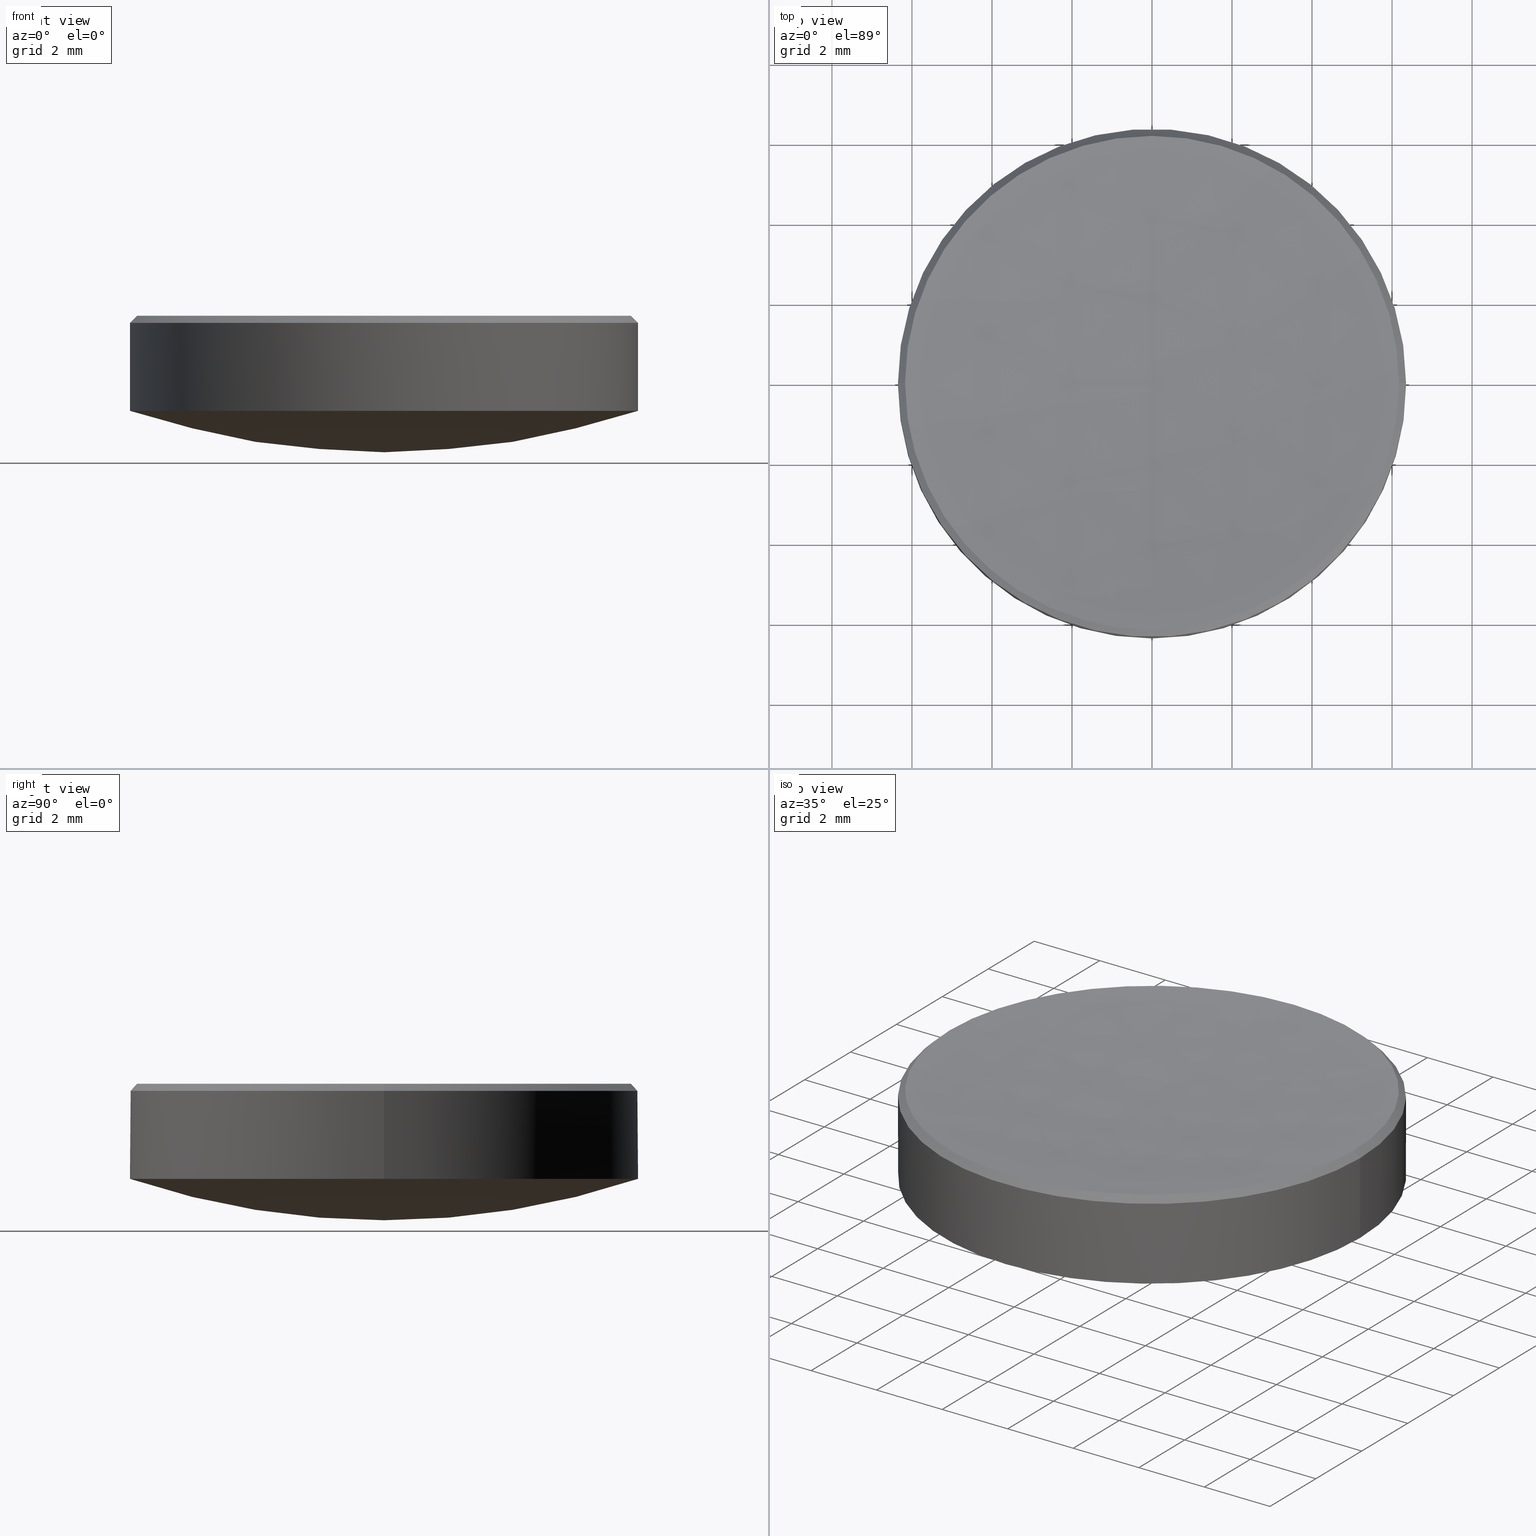
[diagram: canonical four-view strip — front | top / right | iso, engineering-drawing reading convention]
A machine part, canonical four-view strip (front | top / right | iso — engineering-drawing reading convention). The complete STEP part file that produces these views, byte-faithful:
ISO-10303-21;
HEADER;
FILE_DESCRIPTION (( 'STEP AP214' ),
    '1' );
FILE_NAME ('GLM5-012B-080-IR1.STEP',
    '2024-08-09T03:05:58',
    ( 'Windows User' ),
    ( 'P R C' ),
    'SwSTEP 2.0',
    'SolidWorks 2022',
    '' );
FILE_SCHEMA (( 'AUTOMOTIVE_DESIGN' ));
ENDSEC;

DATA;
#1 = CARTESIAN_POINT ( 'NONE',  ( 0.000000000000000000, 0.000000000000000000, 22.96516543560851886 ) ) ;
#2 = DIRECTION ( 'NONE',  ( 1.000000000000000000, 0.000000000000000000, 0.000000000000000000 ) ) ;
#3 = DIRECTION ( 'NONE',  ( 1.000000000000000000, 0.000000000000000000, 0.000000000000000000 ) ) ;
#4 = ORIENTED_EDGE ( 'NONE', *, *, #133, .T. ) ;
#5 = AXIS2_PLACEMENT_3D ( 'NONE', #212, #102, #152 ) ;
#6 = VERTEX_POINT ( 'NONE', #164 ) ;
#7 = VERTEX_POINT ( 'NONE', #159 ) ;
#8 = FACE_OUTER_BOUND ( 'NONE', #168, .T. ) ;
#9 = ORIENTED_EDGE ( 'NONE', *, *, #61, .T. ) ;
#10 = AXIS2_PLACEMENT_3D ( 'NONE', #118, #48, #163 ) ;
#11 = ORIENTED_EDGE ( 'NONE', *, *, #139, .T. ) ;
#12 = EDGE_CURVE ( 'NONE', #257, #267, #184, .T. ) ;
#13 = CARTESIAN_POINT ( 'NONE',  ( -6.349999999999998757, 0.000000000000000000, 4.000000000000000000 ) ) ;
#14 = PRODUCT_DEFINITION_CONTEXT ( 'detailed design', #174, 'design' ) ;
#15 = SURFACE_STYLE_USAGE ( .BOTH. , #238 ) ;
#16 = FACE_OUTER_BOUND ( 'NONE', #74, .T. ) ;
#17 = DIRECTION ( 'NONE',  ( 0.000000000000000000, 0.000000000000000000, -1.000000000000000000 ) ) ;
#18 = STYLED_ITEM ( 'NONE', ( #60 ), #65 ) ;
#19 = CARTESIAN_POINT ( 'NONE',  ( -7.559481502147219479E-16, -6.172785089880957088, 6.377214910119027635 ) ) ;
#20 = CARTESIAN_POINT ( 'NONE',  ( 0.000000000000000000, 0.000000000000000000, 22.96516543560851886 ) ) ;
#21 = EDGE_CURVE ( 'NONE', #57, #190, #204, .T. ) ;
#22 = PRODUCT_CONTEXT ( 'NONE', #84, 'mechanical' ) ;
#23 = DIRECTION ( 'NONE',  ( -0.000000000000000000, -0.000000000000000000, -1.000000000000000000 ) ) ;
#24 = LINE ( 'NONE', #200, #150 ) ;
#25 = EDGE_CURVE ( 'NONE', #210, #26, #138, .T. ) ;
#26 = VERTEX_POINT ( 'NONE', #108 ) ;
#27 = ADVANCED_FACE ( 'NONE', ( #88 ), #59, .T. ) ;
#28 = ORIENTED_EDGE ( 'NONE', *, *, #21, .F. ) ;
#29 = CIRCLE ( 'NONE', #193, 6.172785089880961529 ) ;
#30 = ORIENTED_EDGE ( 'NONE', *, *, #100, .F. ) ;
#31 = DIRECTION ( 'NONE',  ( 1.000000000000000000, 0.000000000000000000, 0.000000000000000000 ) ) ;
#32 = VERTEX_POINT ( 'NONE', #185 ) ;
#33 = DIRECTION ( 'NONE',  ( -1.000000000000000000, 0.000000000000000000, 0.000000000000000000 ) ) ;
#34 = MECHANICAL_DESIGN_GEOMETRIC_PRESENTATION_REPRESENTATION (  '', ( #18 ), #216 ) ;
#35 = EDGE_CURVE ( 'NONE', #57, #210, #280, .T. ) ;
#36 = MECHANICAL_DESIGN_GEOMETRIC_PRESENTATION_REPRESENTATION (  '', ( #153 ), #50 ) ;
#37 = FACE_OUTER_BOUND ( 'NONE', #169, .T. ) ;
#38 = EDGE_CURVE ( 'NONE', #26, #32, #47, .T. ) ;
#39 = DIRECTION ( 'NONE',  ( -1.000000000000000000, 0.000000000000000000, 0.000000000000000000 ) ) ;
#40 = FACE_OUTER_BOUND ( 'NONE', #253, .T. ) ;
#41 = DIRECTION ( 'NONE',  ( -0.000000000000000000, -0.000000000000000000, -1.000000000000000000 ) ) ;
#42 = AXIS2_PLACEMENT_3D ( 'NONE', #146, #31, #121 ) ;
#43 = LINE ( 'NONE', #202, #270 ) ;
#44 = DIRECTION ( 'NONE',  ( 1.000000000000000000, 0.000000000000000000, 0.000000000000000000 ) ) ;
#45 = EDGE_CURVE ( 'NONE', #53, #190, #43, .T. ) ;
#46 = DIRECTION ( 'NONE',  ( 0.000000000000000000, 0.000000000000000000, -1.000000000000000000 ) ) ;
#47 = CIRCLE ( 'NONE', #131, 6.349999999999998757 ) ;
#48 = DIRECTION ( 'NONE',  ( -0.000000000000000000, -0.000000000000000000, 1.000000000000000000 ) ) ;
#49 = ORIENTED_EDGE ( 'NONE', *, *, #38, .F. ) ;
#50 =( GEOMETRIC_REPRESENTATION_CONTEXT ( 3 ) GLOBAL_UNCERTAINTY_ASSIGNED_CONTEXT ( ( #154 ) ) GLOBAL_UNIT_ASSIGNED_CONTEXT ( ( #264, #155, #237 ) ) REPRESENTATION_CONTEXT ( 'NONE', 'WORKASPACE' ) );
#51 = ORIENTED_EDGE ( 'NONE', *, *, #45, .F. ) ;
#52 = DIRECTION ( 'NONE',  ( -1.000000000000000000, 0.000000000000000000, 0.000000000000000000 ) ) ;
#53 = VERTEX_POINT ( 'NONE', #67 ) ;
#54 = AXIS2_PLACEMENT_3D ( 'NONE', #86, #95, #52 ) ;
#55 = DIRECTION ( 'NONE',  ( -0.000000000000000000, -0.000000000000000000, -1.000000000000000000 ) ) ;
#56 = ORIENTED_EDGE ( 'NONE', *, *, #87, .T. ) ;
#57 = VERTEX_POINT ( 'NONE', #220 ) ;
#58 = CARTESIAN_POINT ( 'NONE',  ( 0.000000000000000000, 0.000000000000000000, 22.96516543560851886 ) ) ;
#59 = SPHERICAL_SURFACE ( 'NONE', #222, 20.00000000000000355 ) ;
#60 = PRESENTATION_STYLE_ASSIGNMENT (( #15 ) ) ;
#61 = EDGE_CURVE ( 'NONE', #6, #172, #29, .T. ) ;
#62 = SPHERICAL_SURFACE ( 'NONE', #103, 49.10000000000000142 ) ;
#63 = CARTESIAN_POINT ( 'NONE',  ( 0.000000000000000000, 0.000000000000000000, 6.200000000000003730 ) ) ;
#64 = AXIS2_PLACEMENT_3D ( 'NONE', #58, #130, #243 ) ;
#65 = MANIFOLD_SOLID_BREP ( '����1', #149 ) ;
#66 = APPLICATION_PROTOCOL_DEFINITION ( 'draft international standard', 'automotive_design', 1998, #174 ) ;
#67 = CARTESIAN_POINT ( 'NONE',  ( 6.172785089880961529, 7.667994338366458779E-16, 6.377214910119027635 ) ) ;
#68 = UNCERTAINTY_MEASURE_WITH_UNIT (LENGTH_MEASURE( 1.000000000000000082E-05 ), #196, 'distance_accuracy_value', 'NONE');
#69 = PRODUCT_DEFINITION_SHAPE ( 'NONE', 'NONE',  #241 ) ;
#70 = CARTESIAN_POINT ( 'NONE',  ( 6.349999999999999645, 7.776507174585692163E-16, 10.00000000000000000 ) ) ;
#71 = ORIENTED_EDGE ( 'NONE', *, *, #233, .F. ) ;
#72 = CARTESIAN_POINT ( 'NONE',  ( 0.000000000000000000, 0.000000000000000000, 4.000000000000000000 ) ) ;
#73 = ORIENTED_EDGE ( 'NONE', *, *, #139, .F. ) ;
#74 = EDGE_LOOP ( 'NONE', ( #234, #142, #9, #4 ) ) ;
#75 = SPHERICAL_SURFACE ( 'NONE', #119, 49.10000000000000142 ) ;
#76 = ADVANCED_FACE ( 'NONE', ( #226 ), #144, .T. ) ;
#77 = VECTOR ( 'NONE', #181, 1000.000000000000000 ) ;
#78 = AXIS2_PLACEMENT_3D ( 'NONE', #91, #136, #3 ) ;
#79 = SURFACE_STYLE_USAGE ( .BOTH. , #180 ) ;
#80 = CYLINDRICAL_SURFACE ( 'NONE', #229, 6.349999999999999645 ) ;
#81 = CIRCLE ( 'NONE', #194, 20.00000000000000355 ) ;
#82 = DIRECTION ( 'NONE',  ( -1.224646799147353454E-16, -1.000000000000000000, 0.000000000000000000 ) ) ;
#83 =( LENGTH_UNIT ( ) NAMED_UNIT ( * ) SI_UNIT ( .MILLI., .METRE. ) );
#84 = APPLICATION_CONTEXT ( 'automotive_design' ) ;
#85 = DIRECTION ( 'NONE',  ( -0.000000000000000000, -0.000000000000000000, 1.000000000000000000 ) ) ;
#86 = CARTESIAN_POINT ( 'NONE',  ( 0.000000000000000000, 0.000000000000000000, 6.377214910119027635 ) ) ;
#87 = EDGE_CURVE ( 'NONE', #190, #32, #266, .T. ) ;
#88 = FACE_OUTER_BOUND ( 'NONE', #209, .T. ) ;
#89 = CIRCLE ( 'NONE', #255, 6.349999999999998757 ) ;
#90 = DIRECTION ( 'NONE',  ( 0.000000000000000000, 0.000000000000000000, 1.000000000000000000 ) ) ;
#91 = CARTESIAN_POINT ( 'NONE',  ( 0.000000000000000000, 0.000000000000000000, 6.377214910119027635 ) ) ;
#92 = DIRECTION ( 'NONE',  ( -0.7071067811865648922, 0.000000000000000000, -0.7071067811865301422 ) ) ;
#93 = SHAPE_DEFINITION_REPRESENTATION ( #69, #137 ) ;
#94 = ORIENTED_EDGE ( 'NONE', *, *, #21, .T. ) ;
#95 = DIRECTION ( 'NONE',  ( 0.000000000000000000, 0.000000000000000000, -1.000000000000000000 ) ) ;
#96 = CIRCLE ( 'NONE', #78, 6.172785089880961529 ) ;
#97 = EDGE_LOOP ( 'NONE', ( #268, #208, #28, #232, #258 ) ) ;
#98 = DIRECTION ( 'NONE',  ( -0.000000000000000000, -0.000000000000000000, 1.000000000000000000 ) ) ;
#99 = ORIENTED_EDGE ( 'NONE', *, *, #12, .T. ) ;
#100 = EDGE_CURVE ( 'NONE', #32, #250, #89, .T. ) ;
#101 = AXIS2_PLACEMENT_3D ( 'NONE', #221, #46, #2 ) ;
#102 = DIRECTION ( 'NONE',  ( 0.000000000000000000, 0.000000000000000000, -1.000000000000000000 ) ) ;
#103 = AXIS2_PLACEMENT_3D ( 'NONE', #276, #195, #104 ) ;
#104 = DIRECTION ( 'NONE',  ( 0.000000000000000000, 1.000000000000000000, 0.000000000000000000 ) ) ;
#105 = SPHERICAL_SURFACE ( 'NONE', #64, 20.00000000000000355 ) ;
#106 = DIRECTION ( 'NONE',  ( 1.000000000000000000, 0.000000000000000000, 0.000000000000000000 ) ) ;
#107 = AXIS2_PLACEMENT_3D ( 'NONE', #109, #132, #82 ) ;
#108 = CARTESIAN_POINT ( 'NONE',  ( -7.776507174585701038E-16, -6.350000000000006750, 4.000000000000001776 ) ) ;
#109 = CARTESIAN_POINT ( 'NONE',  ( 0.000000000000000000, 0.000000000000000000, 55.08765243878576001 ) ) ;
#110 = PRODUCT_DEFINITION_FORMATION_WITH_SPECIFIED_SOURCE ( '�κ�', '', #156, .NOT_KNOWN. ) ;
#111 = DIRECTION ( 'NONE',  ( 0.000000000000000000, 1.000000000000000000, 0.000000000000000000 ) ) ;
#112 = DIRECTION ( 'NONE',  ( 0.000000000000000000, 0.000000000000000000, -1.000000000000000000 ) ) ;
#113 = DIRECTION ( 'NONE',  ( 1.000000000000000000, 0.000000000000000000, 0.000000000000000000 ) ) ;
#114 = DIRECTION ( 'NONE',  ( 1.000000000000000000, 0.000000000000000000, 0.000000000000000000 ) ) ;
#115 = EDGE_CURVE ( 'NONE', #190, #57, #167, .T. ) ;
#116 = ORIENTED_EDGE ( 'NONE', *, *, #35, .F. ) ;
#117 = EDGE_LOOP ( 'NONE', ( #171, #11, #30, #49 ) ) ;
#118 = CARTESIAN_POINT ( 'NONE',  ( 0.000000000000000000, 0.000000000000000000, 6.377214910119027635 ) ) ;
#119 = AXIS2_PLACEMENT_3D ( 'NONE', #173, #39, #240 ) ;
#120 = ORIENTED_EDGE ( 'NONE', *, *, #251, .T. ) ;
#121 = DIRECTION ( 'NONE',  ( 0.000000000000000000, 0.000000000000000000, -1.000000000000000000 ) ) ;
#122 = ORIENTED_EDGE ( 'NONE', *, *, #182, .T. ) ;
#123 = AXIS2_PLACEMENT_3D ( 'NONE', #63, #17, #113 ) ;
#124 = ORIENTED_EDGE ( 'NONE', *, *, #100, .T. ) ;
#125 = DIRECTION ( 'NONE',  ( 1.000000000000000000, 0.000000000000000000, 0.000000000000000000 ) ) ;
#126 = AXIS2_PLACEMENT_3D ( 'NONE', #183, #90, #44 ) ;
#127 = CYLINDRICAL_SURFACE ( 'NONE', #205, 6.349999999999999645 ) ;
#128 = COLOUR_RGB ( '',1.000000000000000000, 1.000000000000000000, 1.000000000000000000 ) ;
#129 = EDGE_CURVE ( 'NONE', #53, #6, #263, .T. ) ;
#130 = DIRECTION ( 'NONE',  ( -1.000000000000000000, 0.000000000000000000, 0.000000000000000000 ) ) ;
#131 = AXIS2_PLACEMENT_3D ( 'NONE', #282, #85, #245 ) ;
#132 = DIRECTION ( 'NONE',  ( -1.000000000000000000, 1.224646799147353207E-16, 0.000000000000000000 ) ) ;
#133 = EDGE_CURVE ( 'NONE', #172, #267, #179, .T. ) ;
#134 = CONICAL_SURFACE ( 'NONE', #5, 6.172785089880967746, 0.7853981633974728149 ) ;
#135 = CARTESIAN_POINT ( 'NONE',  ( 0.000000000000000000, 3.006507891906752541E-15, 5.987652438785754150 ) ) ;
#136 = DIRECTION ( 'NONE',  ( -0.000000000000000000, -0.000000000000000000, 1.000000000000000000 ) ) ;
#137 = ADVANCED_BREP_SHAPE_REPRESENTATION ( 'GLM5-012B-080-IR1', ( #65, #126 ), #140 ) ;
#138 = CIRCLE ( 'NONE', #188, 6.349999999999998757 ) ;
#139 = EDGE_CURVE ( 'NONE', #7, #250, #81, .T. ) ;
#140 =( GEOMETRIC_REPRESENTATION_CONTEXT ( 3 ) GLOBAL_UNCERTAINTY_ASSIGNED_CONTEXT ( ( #273 ) ) GLOBAL_UNIT_ASSIGNED_CONTEXT ( ( #83, #261, #214 ) ) REPRESENTATION_CONTEXT ( 'NONE', 'WORKASPACE' ) );
#141 = EDGE_LOOP ( 'NONE', ( #51, #225, #254, #187, #206 ) ) ;
#142 = ORIENTED_EDGE ( 'NONE', *, *, #233, .T. ) ;
#143 = DIRECTION ( 'NONE',  ( 1.000000000000000000, 0.000000000000000000, 0.000000000000000000 ) ) ;
#144 = CONICAL_SURFACE ( 'NONE', #54, 6.172785089880967746, 0.7853981633974728149 ) ;
#145 = ORIENTED_EDGE ( 'NONE', *, *, #35, .T. ) ;
#146 = CARTESIAN_POINT ( 'NONE',  ( 0.000000000000000000, 0.000000000000000000, 55.08765243878576001 ) ) ;
#147 = ORIENTED_EDGE ( 'NONE', *, *, #38, .T. ) ;
#148 = ORIENTED_EDGE ( 'NONE', *, *, #151, .T. ) ;
#149 = CLOSED_SHELL ( 'NONE', ( #76, #236, #27, #256, #227, #260, #275, #199 ) ) ;
#150 = VECTOR ( 'NONE', #92, 1000.000000000000114 ) ;
#151 = EDGE_CURVE ( 'NONE', #267, #53, #96, .T. ) ;
#152 = DIRECTION ( 'NONE',  ( -1.000000000000000000, 0.000000000000000000, 0.000000000000000000 ) ) ;
#153 = STYLED_ITEM ( 'NONE', ( #262 ), #137 ) ;
#154 = UNCERTAINTY_MEASURE_WITH_UNIT (LENGTH_MEASURE( 1.000000000000000082E-05 ), #264, 'distance_accuracy_value', 'NONE');
#155 =( NAMED_UNIT ( * ) PLANE_ANGLE_UNIT ( ) SI_UNIT ( $, .RADIAN. ) );
#156 = PRODUCT ( 'GLM5-012B-080-IR1', 'GLM5-012B-080-IR1', '', ( #22 ) ) ;
#157 = FILL_AREA_STYLE_COLOUR ( '', #128 ) ;
#158 = DIRECTION ( 'NONE',  ( 1.000000000000000000, 0.000000000000000000, 0.000000000000000000 ) ) ;
#159 = CARTESIAN_POINT ( 'NONE',  ( 0.000000000000000000, 1.224646799147353454E-15, 2.965165435608513533 ) ) ;
#160 = DIRECTION ( 'NONE',  ( -1.000000000000000000, 0.000000000000000000, 0.000000000000000000 ) ) ;
#161 = CARTESIAN_POINT ( 'NONE',  ( 0.000000000000000000, 0.000000000000000000, 10.00000000000000000 ) ) ;
#162 = AXIS2_PLACEMENT_3D ( 'NONE', #281, #178, #239 ) ;
#163 = DIRECTION ( 'NONE',  ( 1.000000000000000000, 0.000000000000000000, 0.000000000000000000 ) ) ;
#164 = CARTESIAN_POINT ( 'NONE',  ( 0.000000000000000000, 6.172785089880957088, 6.377214910119027635 ) ) ;
#165 = PRODUCT_RELATED_PRODUCT_CATEGORY ( 'part', '', ( #156 ) ) ;
#166 = CARTESIAN_POINT ( 'NONE',  ( 0.000000000000000000, 0.000000000000000000, 4.000000000000000000 ) ) ;
#167 = CIRCLE ( 'NONE', #101, 6.349999999999999645 ) ;
#168 = EDGE_LOOP ( 'NONE', ( #71, #99, #148, #228 ) ) ;
#169 = EDGE_LOOP ( 'NONE', ( #192, #203, #145, #189, #147 ) ) ;
#170 = EDGE_CURVE ( 'NONE', #172, #57, #24, .T. ) ;
#171 = ORIENTED_EDGE ( 'NONE', *, *, #251, .F. ) ;
#172 = VERTEX_POINT ( 'NONE', #201 ) ;
#173 = CARTESIAN_POINT ( 'NONE',  ( 0.000000000000000000, 0.000000000000000000, 55.08765243878576001 ) ) ;
#174 = APPLICATION_CONTEXT ( 'automotive_design' ) ;
#175 = ORIENTED_EDGE ( 'NONE', *, *, #182, .F. ) ;
#176 = FACE_OUTER_BOUND ( 'NONE', #141, .T. ) ;
#177 = AXIS2_PLACEMENT_3D ( 'NONE', #72, #211, #125 ) ;
#178 = DIRECTION ( 'NONE',  ( -1.000000000000000000, 1.224646799147353207E-16, 0.000000000000000000 ) ) ;
#179 = CIRCLE ( 'NONE', #248, 6.172785089880961529 ) ;
#180 = SURFACE_SIDE_STYLE ('',( #274 ) ) ;
#181 = DIRECTION ( 'NONE',  ( -0.000000000000000000, -0.000000000000000000, -1.000000000000000000 ) ) ;
#182 = EDGE_CURVE ( 'NONE', #250, #210, #244, .T. ) ;
#183 = CARTESIAN_POINT ( 'NONE',  ( 0.000000000000000000, 0.000000000000000000, 0.000000000000000000 ) ) ;
#184 = CIRCLE ( 'NONE', #107, 49.10000000000000142 ) ;
#185 = CARTESIAN_POINT ( 'NONE',  ( 6.349999999999998757, 7.776507174585691177E-16, 4.000000000000000000 ) ) ;
#186 = DIRECTION ( 'NONE',  ( -0.000000000000000000, -0.000000000000000000, 1.000000000000000000 ) ) ;
#187 = ORIENTED_EDGE ( 'NONE', *, *, #170, .T. ) ;
#188 = AXIS2_PLACEMENT_3D ( 'NONE', #218, #186, #158 ) ;
#189 = ORIENTED_EDGE ( 'NONE', *, *, #25, .T. ) ;
#190 = VERTEX_POINT ( 'NONE', #231 ) ;
#191 = CARTESIAN_POINT ( 'NONE',  ( 0.000000000000000000, 6.350000000000006750, 4.000000000000001776 ) ) ;
#192 = ORIENTED_EDGE ( 'NONE', *, *, #87, .F. ) ;
#193 = AXIS2_PLACEMENT_3D ( 'NONE', #246, #215, #106 ) ;
#194 = AXIS2_PLACEMENT_3D ( 'NONE', #1, #223, #112 ) ;
#195 = DIRECTION ( 'NONE',  ( -1.000000000000000000, 0.000000000000000000, 0.000000000000000000 ) ) ;
#196 =( LENGTH_UNIT ( ) NAMED_UNIT ( * ) SI_UNIT ( .MILLI., .METRE. ) );
#197 = FILL_AREA_STYLE_COLOUR ( '', #252 ) ;
#198 = CARTESIAN_POINT ( 'NONE',  ( -6.349999999999999645, 0.000000000000000000, 10.00000000000000000 ) ) ;
#199 = ADVANCED_FACE ( 'NONE', ( #176 ), #134, .T. ) ;
#200 = CARTESIAN_POINT ( 'NONE',  ( -6.172785089880967746, 0.000000000000000000, 6.377214910119027635 ) ) ;
#201 = CARTESIAN_POINT ( 'NONE',  ( -6.172785089880961529, 0.000000000000000000, 6.377214910119027635 ) ) ;
#202 = CARTESIAN_POINT ( 'NONE',  ( 6.172785089880967746, 7.559481502147233284E-16, 6.377214910119027635 ) ) ;
#203 = ORIENTED_EDGE ( 'NONE', *, *, #115, .T. ) ;
#204 = CIRCLE ( 'NONE', #123, 6.349999999999999645 ) ;
#205 = AXIS2_PLACEMENT_3D ( 'NONE', #235, #55, #33 ) ;
#206 = ORIENTED_EDGE ( 'NONE', *, *, #115, .F. ) ;
#207 = CARTESIAN_POINT ( 'NONE',  ( 0.000000000000000000, 0.000000000000000000, 6.377214910119027635 ) ) ;
#208 = ORIENTED_EDGE ( 'NONE', *, *, #45, .T. ) ;
#209 = EDGE_LOOP ( 'NONE', ( #73, #120, #230, #175 ) ) ;
#210 = VERTEX_POINT ( 'NONE', #13 ) ;
#211 = DIRECTION ( 'NONE',  ( -0.000000000000000000, -0.000000000000000000, 1.000000000000000000 ) ) ;
#212 = CARTESIAN_POINT ( 'NONE',  ( 0.000000000000000000, 0.000000000000000000, 6.377214910119027635 ) ) ;
#213 = APPLICATION_PROTOCOL_DEFINITION ( 'draft international standard', 'automotive_design', 1998, #84 ) ;
#214 =( NAMED_UNIT ( * ) SI_UNIT ( $, .STERADIAN. ) SOLID_ANGLE_UNIT ( ) );
#215 = DIRECTION ( 'NONE',  ( -0.000000000000000000, -0.000000000000000000, 1.000000000000000000 ) ) ;
#216 =( GEOMETRIC_REPRESENTATION_CONTEXT ( 3 ) GLOBAL_UNCERTAINTY_ASSIGNED_CONTEXT ( ( #68 ) ) GLOBAL_UNIT_ASSIGNED_CONTEXT ( ( #196, #217, #247 ) ) REPRESENTATION_CONTEXT ( 'NONE', 'WORKASPACE' ) );
#217 =( NAMED_UNIT ( * ) PLANE_ANGLE_UNIT ( ) SI_UNIT ( $, .RADIAN. ) );
#218 = CARTESIAN_POINT ( 'NONE',  ( 0.000000000000000000, 0.000000000000000000, 4.000000000000000000 ) ) ;
#219 = DIRECTION ( 'NONE',  ( -1.000000000000000000, 0.000000000000000000, 0.000000000000000000 ) ) ;
#220 = CARTESIAN_POINT ( 'NONE',  ( -6.349999999999999645, 0.000000000000000000, 6.200000000000003730 ) ) ;
#221 = CARTESIAN_POINT ( 'NONE',  ( 0.000000000000000000, 0.000000000000000000, 6.200000000000003730 ) ) ;
#222 = AXIS2_PLACEMENT_3D ( 'NONE', #20, #219, #111 ) ;
#223 = DIRECTION ( 'NONE',  ( 1.000000000000000000, -0.000000000000000000, 0.000000000000000000 ) ) ;
#224 = DIRECTION ( 'NONE',  ( 0.7071067811865648922, 8.659560562355146097E-17, -0.7071067811865301422 ) ) ;
#225 = ORIENTED_EDGE ( 'NONE', *, *, #151, .F. ) ;
#226 = FACE_OUTER_BOUND ( 'NONE', #97, .T. ) ;
#227 = ADVANCED_FACE ( 'NONE', ( #37 ), #127, .T. ) ;
#228 = ORIENTED_EDGE ( 'NONE', *, *, #129, .T. ) ;
#229 = AXIS2_PLACEMENT_3D ( 'NONE', #161, #41, #160 ) ;
#230 = ORIENTED_EDGE ( 'NONE', *, *, #25, .F. ) ;
#231 = CARTESIAN_POINT ( 'NONE',  ( 6.349999999999999645, 7.776507174585692163E-16, 6.200000000000003730 ) ) ;
#232 = ORIENTED_EDGE ( 'NONE', *, *, #170, .F. ) ;
#233 = EDGE_CURVE ( 'NONE', #257, #6, #259, .T. ) ;
#234 = ORIENTED_EDGE ( 'NONE', *, *, #12, .F. ) ;
#235 = CARTESIAN_POINT ( 'NONE',  ( 0.000000000000000000, 0.000000000000000000, 10.00000000000000000 ) ) ;
#236 = ADVANCED_FACE ( 'NONE', ( #8 ), #75, .F. ) ;
#237 =( NAMED_UNIT ( * ) SI_UNIT ( $, .STERADIAN. ) SOLID_ANGLE_UNIT ( ) );
#238 = SURFACE_SIDE_STYLE ('',( #277 ) ) ;
#239 = DIRECTION ( 'NONE',  ( -1.224646799147353207E-16, -1.000000000000000000, 0.000000000000000000 ) ) ;
#240 = DIRECTION ( 'NONE',  ( 0.000000000000000000, 1.000000000000000000, 0.000000000000000000 ) ) ;
#241 = PRODUCT_DEFINITION ( 'δ֪', '', #110, #14 ) ;
#242 = PRESENTATION_LAYER_ASSIGNMENT (  '', '', ( #18 ) ) ;
#243 = DIRECTION ( 'NONE',  ( 0.000000000000000000, 1.000000000000000000, 0.000000000000000000 ) ) ;
#244 = CIRCLE ( 'NONE', #177, 6.349999999999998757 ) ;
#245 = DIRECTION ( 'NONE',  ( 1.000000000000000000, 0.000000000000000000, 0.000000000000000000 ) ) ;
#246 = CARTESIAN_POINT ( 'NONE',  ( 0.000000000000000000, 0.000000000000000000, 6.377214910119027635 ) ) ;
#247 =( NAMED_UNIT ( * ) SI_UNIT ( $, .STERADIAN. ) SOLID_ANGLE_UNIT ( ) );
#248 = AXIS2_PLACEMENT_3D ( 'NONE', #207, #98, #114 ) ;
#249 = DIRECTION ( 'NONE',  ( -0.000000000000000000, -0.000000000000000000, 1.000000000000000000 ) ) ;
#250 = VERTEX_POINT ( 'NONE', #191 ) ;
#251 = EDGE_CURVE ( 'NONE', #7, #26, #272, .T. ) ;
#252 = COLOUR_RGB ( '',1.000000000000000000, 1.000000000000000000, 1.000000000000000000 ) ;
#253 = EDGE_LOOP ( 'NONE', ( #94, #56, #124, #122, #116 ) ) ;
#254 = ORIENTED_EDGE ( 'NONE', *, *, #133, .F. ) ;
#255 = AXIS2_PLACEMENT_3D ( 'NONE', #166, #249, #143 ) ;
#256 = ADVANCED_FACE ( 'NONE', ( #40 ), #80, .T. ) ;
#257 = VERTEX_POINT ( 'NONE', #135 ) ;
#258 = ORIENTED_EDGE ( 'NONE', *, *, #61, .F. ) ;
#259 = CIRCLE ( 'NONE', #42, 49.10000000000000142 ) ;
#260 = ADVANCED_FACE ( 'NONE', ( #271 ), #105, .T. ) ;
#261 =( NAMED_UNIT ( * ) PLANE_ANGLE_UNIT ( ) SI_UNIT ( $, .RADIAN. ) );
#262 = PRESENTATION_STYLE_ASSIGNMENT (( #79 ) ) ;
#263 = CIRCLE ( 'NONE', #10, 6.172785089880961529 ) ;
#264 =( LENGTH_UNIT ( ) NAMED_UNIT ( * ) SI_UNIT ( .MILLI., .METRE. ) );
#265 = VECTOR ( 'NONE', #23, 1000.000000000000000 ) ;
#266 = LINE ( 'NONE', #70, #265 ) ;
#267 = VERTEX_POINT ( 'NONE', #19 ) ;
#268 = ORIENTED_EDGE ( 'NONE', *, *, #129, .F. ) ;
#269 = PRESENTATION_LAYER_ASSIGNMENT (  '', '', ( #153 ) ) ;
#270 = VECTOR ( 'NONE', #224, 1000.000000000000114 ) ;
#271 = FACE_OUTER_BOUND ( 'NONE', #117, .T. ) ;
#272 = CIRCLE ( 'NONE', #162, 20.00000000000000355 ) ;
#273 = UNCERTAINTY_MEASURE_WITH_UNIT (LENGTH_MEASURE( 1.000000000000000082E-05 ), #83, 'distance_accuracy_value', 'NONE');
#274 = SURFACE_STYLE_FILL_AREA ( #278 ) ;
#275 = ADVANCED_FACE ( 'NONE', ( #16 ), #62, .F. ) ;
#276 = CARTESIAN_POINT ( 'NONE',  ( 0.000000000000000000, 0.000000000000000000, 55.08765243878576001 ) ) ;
#277 = SURFACE_STYLE_FILL_AREA ( #279 ) ;
#278 = FILL_AREA_STYLE ('',( #197 ) ) ;
#279 = FILL_AREA_STYLE ('',( #157 ) ) ;
#280 = LINE ( 'NONE', #198, #77 ) ;
#281 = CARTESIAN_POINT ( 'NONE',  ( 0.000000000000000000, 0.000000000000000000, 22.96516543560851886 ) ) ;
#282 = CARTESIAN_POINT ( 'NONE',  ( 0.000000000000000000, 0.000000000000000000, 4.000000000000000000 ) ) ;
ENDSEC;
END-ISO-10303-21;
